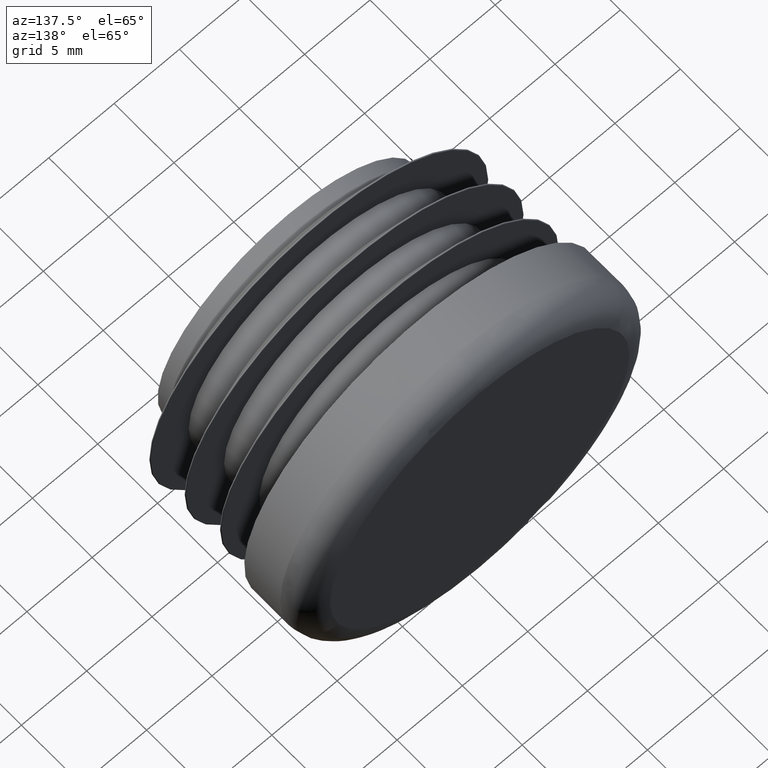
[diagram: clean part render]
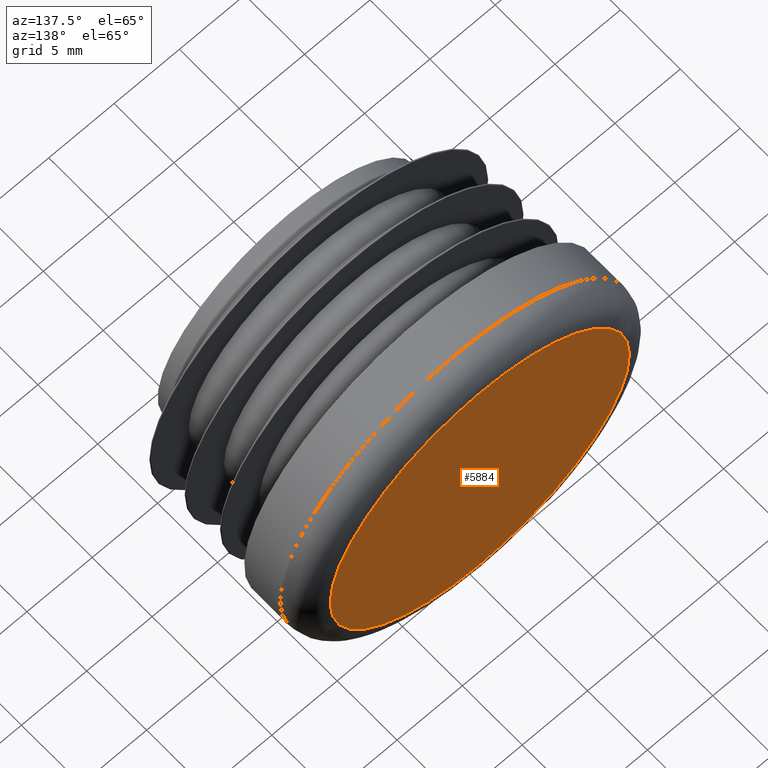
[diagram: same view with one face highlighted and labeled with its STEP entity id]
A machine part, auxiliary view. The second image highlights one B-rep face of the part: STEP entity #5884.
In plain terms, the highlighted planar face has unit normal (0, 1, 0).
Its self-contained STEP definition (entity closure, byte-faithful):
#268 = FACE_OUTER_BOUND ( 'NONE', #9457, .T. ) ;
#2039 = DIRECTION ( 'NONE',  ( 0.000000000000000000, 0.000000000000000000, 1.000000000000000000 ) ) ;
#2092 = AXIS2_PLACEMENT_3D ( 'NONE', #7380, #4095, #9985 ) ;
#2133 = ORIENTED_EDGE ( 'NONE', *, *, #7475, .T. ) ;
#2904 = CARTESIAN_POINT ( 'NONE',  ( 0.000000000000000000, 16.00000000000000000, 11.44999999999999751 ) ) ;
#3663 = AXIS2_PLACEMENT_3D ( 'NONE', #5508, #7145, #2039 ) ;
#4095 = DIRECTION ( 'NONE',  ( 0.000000000000000000, 1.000000000000000000, 0.000000000000000000 ) ) ;
#5508 = CARTESIAN_POINT ( 'NONE',  ( 0.000000000000000000, 16.00000000000000000, 0.000000000000000000 ) ) ;
#5794 = PLANE ( 'NONE',  #2092 ) ;
#5884 = ADVANCED_FACE ( 'NONE', ( #268 ), #5794, .T. ) ;
#7145 = DIRECTION ( 'NONE',  ( 0.000000000000000000, 1.000000000000000000, 0.000000000000000000 ) ) ;
#7380 = CARTESIAN_POINT ( 'NONE',  ( 0.000000000000000000, 16.00000000000000000, 0.000000000000000000 ) ) ;
#7475 = EDGE_CURVE ( 'NONE', #9215, #9215, #8261, .T. ) ;
#8261 = CIRCLE ( 'NONE', #3663, 11.44999999999999751 ) ;
#9215 = VERTEX_POINT ( 'NONE', #2904 ) ;
#9457 = EDGE_LOOP ( 'NONE', ( #2133 ) ) ;
#9985 = DIRECTION ( 'NONE',  ( 0.000000000000000000, -0.000000000000000000, 1.000000000000000000 ) ) ;